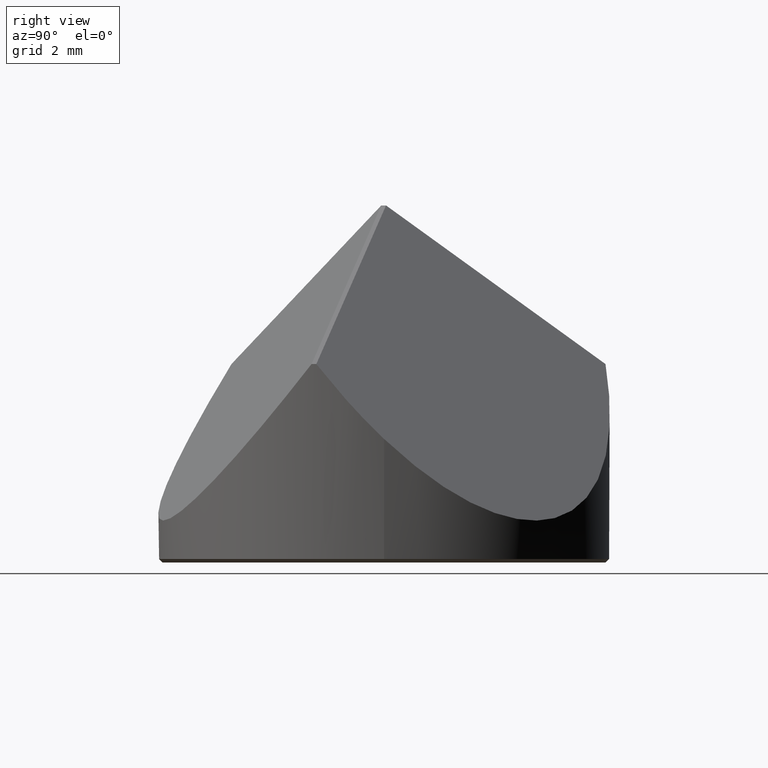
[diagram: clean part render]
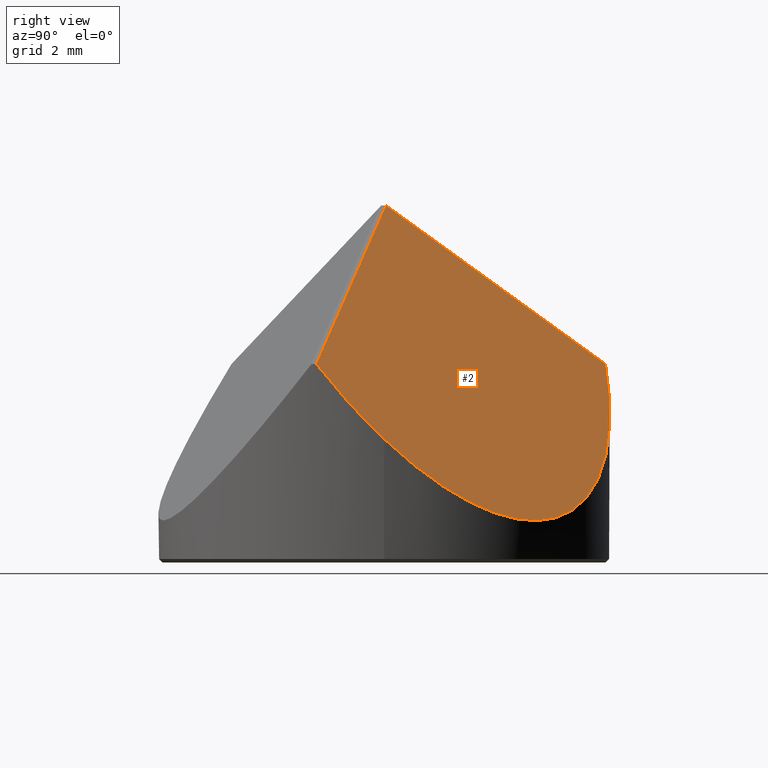
[diagram: same view with one face highlighted and labeled with its STEP entity id]
A machine part, right view. The second image highlights one B-rep face of the part: STEP entity #2.
In plain terms, the highlighted planar face has unit normal (0.6077, 0.5453, 0.5774).
Its self-contained STEP definition (entity closure, byte-faithful):
#2 = ADVANCED_FACE ( 'NONE', ( #76 ), #105, .T. ) ;
#14 = DIRECTION ( 'NONE',  ( 0.1683570817218979776, -0.7989509119468815035, 0.5773502691896249539 ) ) ;
#23 = CARTESIAN_POINT ( 'NONE',  ( -1.240062539693429722, 6.227739951029515275, 4.913675856748689341 ) ) ;
#35 = LINE ( 'NONE', #82, #258 ) ;
#37 = EDGE_CURVE ( 'NONE', #195, #135, #349, .T. ) ;
#38 = CARTESIAN_POINT ( 'NONE',  ( 6.251690436881997215, -1.287743840205802348, 4.125649633596846222 ) ) ;
#44 = CARTESIAN_POINT ( 'NONE',  ( 3.004345022847746627, 7.072882950397803903, -0.3522861678321563828 ) ) ;
#62 = CARTESIAN_POINT ( 'NONE',  ( 6.057349891955523091, -1.905521526098936880, 4.913675856748682236 ) ) ;
#76 = FACE_OUTER_BOUND ( 'NONE', #312, .T. ) ;
#82 = CARTESIAN_POINT ( 'NONE',  ( 4.235462525477922568, -1.310016928385307589, 6.269017013437426122 ) ) ;
#104 = ORIENTED_EDGE ( 'NONE', *, *, #313, .T. ) ;
#105 = PLANE ( 'NONE',  #317 ) ;
#111 = CARTESIAN_POINT ( 'NONE',  ( 6.350000000000001421, -0.6476245182123612221, 3.417607508736826727 ) ) ;
#117 = CARTESIAN_POINT ( 'NONE',  ( -0.8448409661450662078, 4.352186909969163686, 6.269017013437423458 ) ) ;
#135 = VERTEX_POINT ( 'NONE', #247 ) ;
#146 = CARTESIAN_POINT ( 'NONE',  ( 6.349999999999999645, 7.776507174585692163E-16, 2.805960210696957891 ) ) ;
#153 = VECTOR ( 'NONE', #14, 1000.000000000000227 ) ;
#163 = ORIENTED_EDGE ( 'NONE', *, *, #296, .T. ) ;
#186 = CARTESIAN_POINT ( 'NONE',  ( 6.349999999999999645, 7.776507174585692163E-16, 2.805960210696957891 ) ) ;
#187 = CARTESIAN_POINT ( 'NONE',  ( -1.240062539693429722, 6.227739951029515275, 4.913675856748689341 ) ) ;
#192 = EDGE_CURVE ( 'NONE', #218, #195, #357, .T. ) ;
#195 = VERTEX_POINT ( 'NONE', #187 ) ;
#203 = DIRECTION ( 'NONE',  ( 0.6887517733186879765, 0.000000000000000000, -0.7249972377536088031 ) ) ;
#218 = VERTEX_POINT ( 'NONE', #277 ) ;
#221 = CARTESIAN_POINT ( 'NONE',  ( 3.329848234806672025, 2.987642285018697219, 3.163376020178199077 ) ) ;
#247 = CARTESIAN_POINT ( 'NONE',  ( 0.06077332452618703501, 0.05452769656516021773, 9.374658006696643398 ) ) ;
#251 = VERTEX_POINT ( 'NONE', #261 ) ;
#255 = ORIENTED_EDGE ( 'NONE', *, *, #192, .T. ) ;
#258 = VECTOR ( 'NONE', #321, 1000.000000000000000 ) ;
#261 = CARTESIAN_POINT ( 'NONE',  ( 6.057349891955523091, -1.905521526098936880, 4.913675856748682236 ) ) ;
#265 =( BOUNDED_CURVE ( )  B_SPLINE_CURVE ( 3, ( #62, #38, #111, #146 ),
 .UNSPECIFIED., .F., .F. ) 
 B_SPLINE_CURVE_WITH_KNOTS ( ( 4, 4 ),
 ( 5.247123525991988835, 5.551902276905597233 ),
 .UNSPECIFIED. ) 
 CURVE ( )  GEOMETRIC_REPRESENTATION_ITEM ( )  RATIONAL_B_SPLINE_CURVE ( ( 1.000000000000000000, 0.9922741279781082113, 0.9922741279781082113, 1.000000000000000000 ) ) 
 REPRESENTATION_ITEM ( '' )  );
#277 = CARTESIAN_POINT ( 'NONE',  ( 6.349999999999999645, 7.776507174585692163E-16, 2.805960210696957891 ) ) ;
#283 = ORIENTED_EDGE ( 'NONE', *, *, #37, .T. ) ;
#296 = EDGE_CURVE ( 'NONE', #135, #251, #35, .T. ) ;
#303 = CARTESIAN_POINT ( 'NONE',  ( 6.350000000000001421, 4.327731766911850464, -1.281354842135791872 ) ) ;
#312 = EDGE_LOOP ( 'NONE', ( #283, #163, #104, #255 ) ) ;
#313 = EDGE_CURVE ( 'NONE', #251, #218, #265, .T. ) ;
#317 = AXIS2_PLACEMENT_3D ( 'NONE', #221, #345, #203 ) ;
#321 = DIRECTION ( 'NONE',  ( 0.7760903269836925134, -0.2536739462952641300, -0.5773502691896251759 ) ) ;
#345 = DIRECTION ( 'NONE',  ( 0.6077332452617939529, 0.5452769656516166519, 0.5773502691896265082 ) ) ;
#349 = LINE ( 'NONE', #117, #153 ) ;
#357 =( BOUNDED_CURVE ( )  B_SPLINE_CURVE ( 3, ( #186, #303, #44, #23 ),
 .UNSPECIFIED., .F., .F. ) 
 B_SPLINE_CURVE_WITH_KNOTS ( ( 4, 4 ),
 ( 5.551902276905597233, 7.319247088367184517 ),
 .UNSPECIFIED. ) 
 CURVE ( )  GEOMETRIC_REPRESENTATION_ITEM ( )  RATIONAL_B_SPLINE_CURVE ( ( 1.000000000000000000, 0.7562109254666704583, 0.7562109254666704583, 1.000000000000000000 ) ) 
 REPRESENTATION_ITEM ( '' )  );